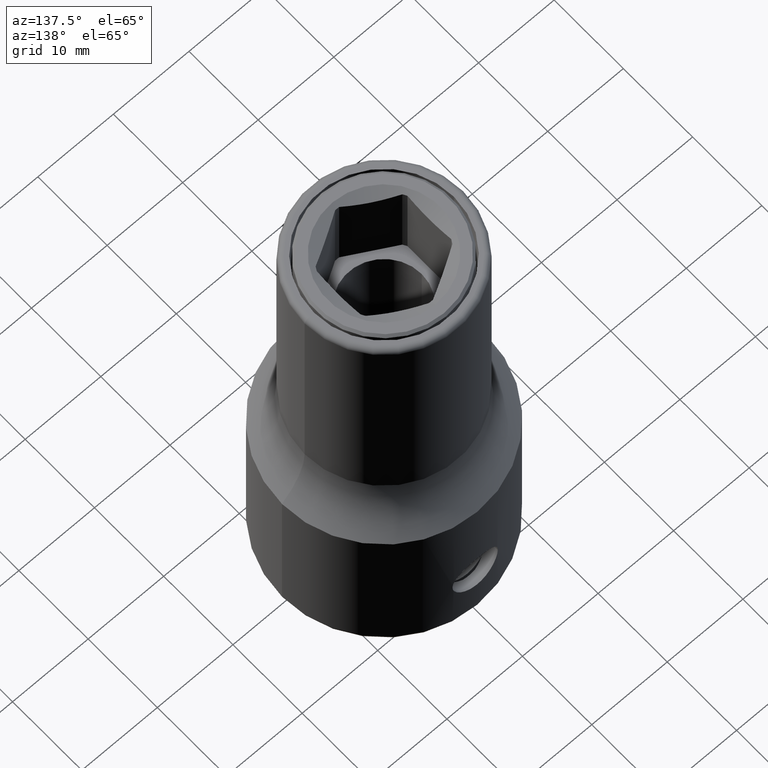
[diagram: clean part render]
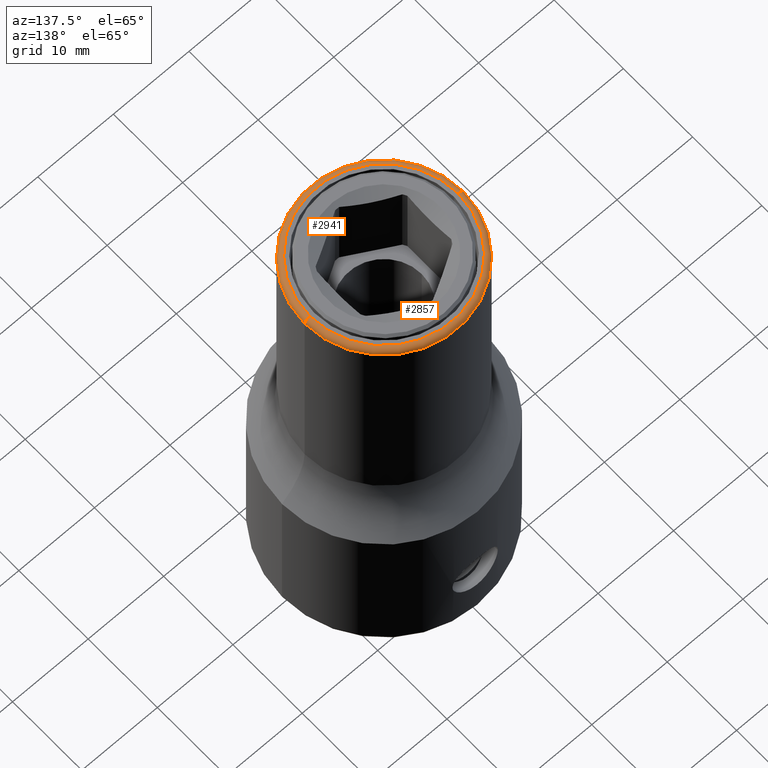
[diagram: same view with one multi-face feature highlighted, each face labeled with its STEP entity id]
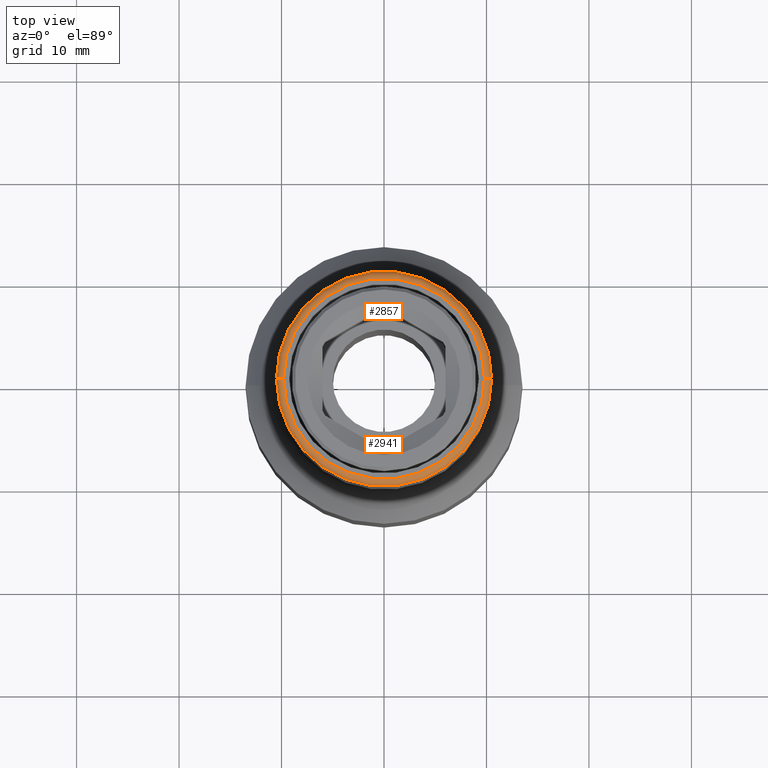
[diagram: same view with one multi-face feature highlighted, each face labeled with its STEP entity id]
A machine part, auxiliary view. The highlighted faces form ONE feature: a constant-radius fillet chain: 2 tangent blend faces with common blend radius 0.7 mm. The faces share edges in the B-rep.
A second angle (top view) of the same feature is appended — it is thin or edge-on in the first view.
Their STEP definitions:
[1] entity #2857 (Torus):
#2404=CARTESIAN_POINT('',(0.E0,0.E0,5.9E1));
#2405=DIRECTION('',(0.E0,0.E0,1.E0));
#2406=DIRECTION('',(-1.E0,0.E0,0.E0));
#2407=AXIS2_PLACEMENT_3D('',#2404,#2405,#2406);
#2427=CARTESIAN_POINT('',(-9.8E0,2.759070749647E-12,5.9E1));
#2428=DIRECTION('',(-2.815352118102E-13,-1.E0,0.E0));
#2429=DIRECTION('',(0.E0,0.E0,1.E0));
#2430=AXIS2_PLACEMENT_3D('',#2427,#2428,#2429);
#2459=CARTESIAN_POINT('',(0.E0,0.E0,5.97E1));
#2460=DIRECTION('',(0.E0,0.E0,1.E0));
#2461=DIRECTION('',(-1.E0,0.E0,0.E0));
#2462=AXIS2_PLACEMENT_3D('',#2459,#2460,#2461);
#2513=CARTESIAN_POINT('',(9.8E0,-2.758626660437E-12,5.9E1));
#2514=DIRECTION('',(2.814901089998E-13,1.E0,0.E0));
#2515=DIRECTION('',(0.E0,0.E0,1.E0));
#2516=AXIS2_PLACEMENT_3D('',#2513,#2514,#2515);
#2568=CARTESIAN_POINT('',(9.8E0,0.E0,5.97E1));
#2569=CARTESIAN_POINT('',(-9.8E0,0.E0,5.97E1));
#2570=VERTEX_POINT('',#2568);
#2571=VERTEX_POINT('',#2569);
#2572=CARTESIAN_POINT('',(1.05E1,0.E0,5.9E1));
#2573=CARTESIAN_POINT('',(-1.05E1,0.E0,5.9E1));
#2574=VERTEX_POINT('',#2572);
#2575=VERTEX_POINT('',#2573);
#2843=CARTESIAN_POINT('',(0.E0,0.E0,5.9E1));
#2844=DIRECTION('',(0.E0,0.E0,1.E0));
#2845=DIRECTION('',(-9.999457513460E-1,1.041606283943E-2,0.E0));
#2846=AXIS2_PLACEMENT_3D('',#2843,#2844,#2845);
#2847=TOROIDAL_SURFACE('',#2846,9.8E0,7.E-1);
#2849=ORIENTED_EDGE('',*,*,#2848,.T.);
#2851=ORIENTED_EDGE('',*,*,#2850,.T.);
#2852=ORIENTED_EDGE('',*,*,#2833,.F.);
#2854=ORIENTED_EDGE('',*,*,#2853,.F.);
#2855=EDGE_LOOP('',(#2849,#2851,#2852,#2854));
#2856=FACE_OUTER_BOUND('',#2855,.F.);
#2857=ADVANCED_FACE('',(#2856),#2847,.T.);
#2408=CIRCLE('',#2407,1.05E1);
#2431=CIRCLE('',#2430,7.E-1);
#2463=CIRCLE('',#2462,9.8E0);
#2517=CIRCLE('',#2516,7.E-1);
#2833=EDGE_CURVE('',#2575,#2574,#2408,.T.);
#2848=EDGE_CURVE('',#2571,#2570,#2463,.T.);
#2850=EDGE_CURVE('',#2570,#2574,#2517,.T.);
#2853=EDGE_CURVE('',#2571,#2575,#2431,.T.);
[2] entity #2941 (Torus):
#2427=CARTESIAN_POINT('',(-9.8E0,2.759070749647E-12,5.9E1));
#2428=DIRECTION('',(-2.815352118102E-13,-1.E0,0.E0));
#2429=DIRECTION('',(0.E0,0.E0,1.E0));
#2430=AXIS2_PLACEMENT_3D('',#2427,#2428,#2429);
#2451=CARTESIAN_POINT('',(0.E0,0.E0,5.97E1));
#2452=DIRECTION('',(0.E0,0.E0,1.E0));
#2453=DIRECTION('',(1.E0,0.E0,0.E0));
#2454=AXIS2_PLACEMENT_3D('',#2451,#2452,#2453);
#2513=CARTESIAN_POINT('',(9.8E0,-2.758626660437E-12,5.9E1));
#2514=DIRECTION('',(2.814901089998E-13,1.E0,0.E0));
#2515=DIRECTION('',(0.E0,0.E0,1.E0));
#2516=AXIS2_PLACEMENT_3D('',#2513,#2514,#2515);
#2521=CARTESIAN_POINT('',(0.E0,0.E0,5.9E1));
#2522=DIRECTION('',(0.E0,0.E0,1.E0));
#2523=DIRECTION('',(1.E0,0.E0,0.E0));
#2524=AXIS2_PLACEMENT_3D('',#2521,#2522,#2523);
#2568=CARTESIAN_POINT('',(9.8E0,0.E0,5.97E1));
#2569=CARTESIAN_POINT('',(-9.8E0,0.E0,5.97E1));
#2570=VERTEX_POINT('',#2568);
#2571=VERTEX_POINT('',#2569);
#2572=CARTESIAN_POINT('',(1.05E1,0.E0,5.9E1));
#2573=CARTESIAN_POINT('',(-1.05E1,0.E0,5.9E1));
#2574=VERTEX_POINT('',#2572);
#2575=VERTEX_POINT('',#2573);
#2929=CARTESIAN_POINT('',(0.E0,0.E0,5.9E1));
#2930=DIRECTION('',(0.E0,0.E0,1.E0));
#2931=DIRECTION('',(9.999457513460E-1,-1.041606283943E-2,0.E0));
#2932=AXIS2_PLACEMENT_3D('',#2929,#2930,#2931);
#2933=TOROIDAL_SURFACE('',#2932,9.8E0,7.E-1);
#2934=ORIENTED_EDGE('',*,*,#2863,.T.);
#2935=ORIENTED_EDGE('',*,*,#2853,.T.);
#2937=ORIENTED_EDGE('',*,*,#2936,.F.);
#2938=ORIENTED_EDGE('',*,*,#2850,.F.);
#2939=EDGE_LOOP('',(#2934,#2935,#2937,#2938));
#2940=FACE_OUTER_BOUND('',#2939,.F.);
#2941=ADVANCED_FACE('',(#2940),#2933,.T.);
#2431=CIRCLE('',#2430,7.E-1);
#2455=CIRCLE('',#2454,9.8E0);
#2517=CIRCLE('',#2516,7.E-1);
#2525=CIRCLE('',#2524,1.05E1);
#2850=EDGE_CURVE('',#2570,#2574,#2517,.T.);
#2853=EDGE_CURVE('',#2571,#2575,#2431,.T.);
#2863=EDGE_CURVE('',#2570,#2571,#2455,.T.);
#2936=EDGE_CURVE('',#2574,#2575,#2525,.T.);